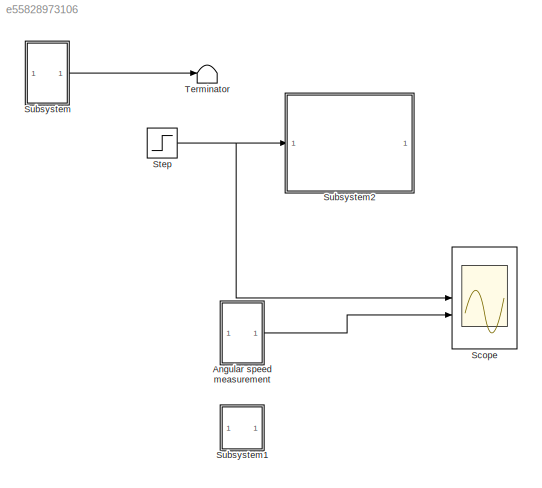
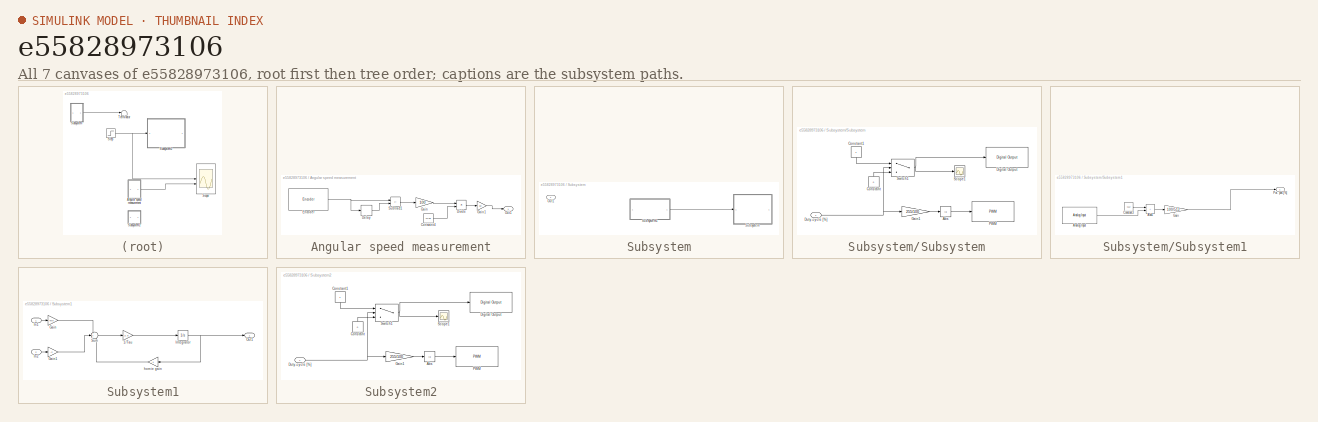
[diagram: thumbnail index - all 7 canvases of the model, root first then tree order]
MODEL slx_e55828973106
KIND model
CONFIG AbsTol = auto
CONFIG EnableMultiTasking = off
CONFIG FixedStep = auto
CONFIG MaxStep = auto
CONFIG MinStep = auto
CONFIG RelTol = 1e-3
CONFIG SampleTimeConstraint = Unconstrained
CONFIG SolverName = FixedStepAuto
CONFIG StartTime = 0.0
CONFIG StopTime = inf
BLOCK [SubSystem] Angular speed measurement
BLOCK [Constant] Angular speed measurement/Constant4
  Value = 47*48
BLOCK [Delay] Angular speed measurement/Delay
  DelayLength = 1
  InputPortMap = u0
  SampleTime = 0.01
BLOCK [Product] Angular speed measurement/Divide
  Inputs = */
BLOCK [Reference] Angular speed measurement/Encoder  REF=arduinosensorlib/Encoder
  SourceBlock = arduinosensorlib/Encoder
  SourceType = Arduino Rotary Encoder
BLOCK [Gain] Angular speed measurement/Gain
  Gain = 100
BLOCK [Gain] Angular speed measurement/Gain1
  Gain = 60
BLOCK [Outport] Angular speed measurement/Out1
BLOCK [Sum] Angular speed measurement/Subtract1
  IconShape = rectangular
  Inputs = +-
BLOCK [Scope] Scope
  Floating = off
  NumInputPorts = 2
  ScopeSpecificationString = Simulink.scopes.TimeScopeBlockCfg('CurrentConfiguration', extmgr.ConfigurationSet(extmgr.Configuration('Core','General UI',true),extmgr.Configuration('Core','Source UI',true),extmgr.Configuration('Sources','WiredSimulink',true,'DataLoggingVariableName','ScopeData1'),extmgr.Configuration('Visuals','Time Domain',true,'SerializedDisplays',{struct('MinYLimReal','-12.5','MaxYLimReal','112.5','YLabelRea...<+2142ch>
BLOCK [Step] Step
  After = 100
  SampleTime = 0
  Time = 5
BLOCK [SubSystem] Subsystem
  Commented = on
BLOCK [Outport] Subsystem/Out1
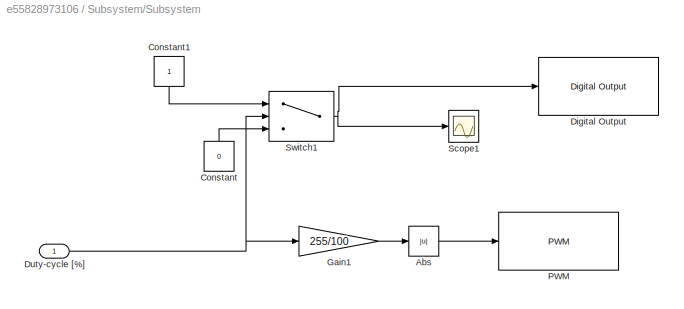
BLOCK [SubSystem] Subsystem/Subsystem
BLOCK [Abs] Subsystem/Subsystem/Abs
  SaturateOnIntegerOverflow = off
BLOCK [Constant] Subsystem/Subsystem/Constant
  NameLocation = right
  Value = 0
BLOCK [Constant] Subsystem/Subsystem/Constant1
  NameLocation = left
BLOCK [Reference] Subsystem/Subsystem/Digital Output  REF=arduinolib/Digital Output
  SourceBlock = arduinolib/Digital Output
  SourceType = Arduino Digital Output
BLOCK [Inport] Subsystem/Subsystem/Duty-cycle [%]
BLOCK [Gain] Subsystem/Subsystem/Gain1
  Gain = 255/100
BLOCK [Reference] Subsystem/Subsystem/PWM  REF=arduinolib/PWM
  SourceBlock = arduinolib/PWM
  SourceType = Arduino PWM
BLOCK [Scope] Subsystem/Subsystem/Scope1
  Floating = off
  NumInputPorts = 1
  ScopeSpecificationString = Simulink.scopes.TimeScopeBlockCfg('CurrentConfiguration', extmgr.ConfigurationSet(extmgr.Configuration('Core','General UI',true),extmgr.Configuration('Core','Source UI',true),extmgr.Configuration('Sources','WiredSimulink',true,'DataLoggingVariableName','ScopeData1'),extmgr.Configuration('Visuals','Time Domain',true,'SerializedDisplays',{struct('MinYLimReal','-0.125','MaxYLimReal','1.125','YLabelRe...<+1354ch>
BLOCK [Switch] Subsystem/Subsystem/Switch1
  Criteria = u2 > Threshold
  InputSameDT = off
  SaturateOnIntegerOverflow = off
BLOCK [SubSystem] Subsystem/Subsystem1
BLOCK [Outport] Subsystem/Subsystem1/ Pot. pos [%]
BLOCK [Sum] Subsystem/Subsystem1/Add1
  IconShape = rectangular
BLOCK [Reference] Subsystem/Subsystem1/Analog Input  REF=arduinolib/Analog Input
  SourceBlock = arduinolib/Analog Input
  SourceType = Arduino Analog Input
BLOCK [Constant] Subsystem/Subsystem1/Constant3
  Value = -512
BLOCK [Gain] Subsystem/Subsystem1/Gain
  Gain = 100/512
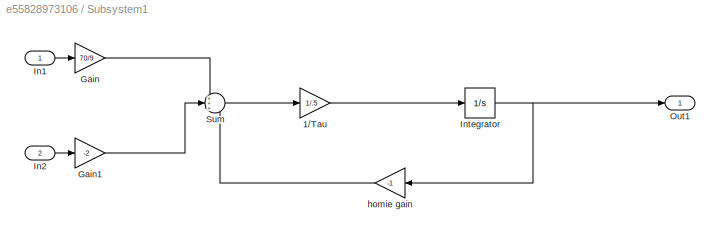
BLOCK [SubSystem] Subsystem1
BLOCK [Gain] Subsystem1/1//Tau
  Gain = 1/.5
BLOCK [Gain] Subsystem1/Gain
  Gain = 70/9
BLOCK [Gain] Subsystem1/Gain1
  Gain = -2
BLOCK [Inport] Subsystem1/In1
BLOCK [Inport] Subsystem1/In2
  Port = 2
BLOCK [Integrator] Subsystem1/Integrator
BLOCK [Outport] Subsystem1/Out1
BLOCK [Sum] Subsystem1/Sum
  Inputs = +++
BLOCK [Gain] Subsystem1/homie gain
  Gain = -1
  NameLocation = top
BLOCK [SubSystem] Subsystem2
BLOCK [Abs] Subsystem2/Abs
  SaturateOnIntegerOverflow = off
BLOCK [Constant] Subsystem2/Constant
  NameLocation = right
  Value = 0
BLOCK [Constant] Subsystem2/Constant1
  NameLocation = left
BLOCK [Reference] Subsystem2/Digital Output  REF=arduinolib/Digital Output
  SourceBlock = arduinolib/Digital Output
  SourceType = Arduino Digital Output
BLOCK [Inport] Subsystem2/Duty-cycle [%]
BLOCK [Gain] Subsystem2/Gain1
  Gain = 255/100
BLOCK [Reference] Subsystem2/PWM  REF=arduinolib/PWM
  SourceBlock = arduinolib/PWM
  SourceType = Arduino PWM
BLOCK [Scope] Subsystem2/Scope1
  Floating = off
  NumInputPorts = 1
  ScopeSpecificationString = Simulink.scopes.TimeScopeBlockCfg('CurrentConfiguration', extmgr.ConfigurationSet(extmgr.Configuration('Core','General UI',true),extmgr.Configuration('Core','Source UI',true),extmgr.Configuration('Sources','WiredSimulink',true,'DataLoggingVariableName','ScopeData1'),extmgr.Configuration('Visuals','Time Domain',true,'SerializedDisplays',{struct('MinYLimReal','-0.125','MaxYLimReal','1.125','YLabelRe...<+1354ch>
BLOCK [Switch] Subsystem2/Switch1
  Criteria = u2 > Threshold
  InputSameDT = off
  SaturateOnIntegerOverflow = off
BLOCK [Terminator] Terminator
  Commented = on
LINE Angular speed measurement/Constant4:1 -> Angular speed measurement/Divide:2
LINE Angular speed measurement/Delay:1 -> Angular speed measurement/Subtract1:2
LINE Angular speed measurement/Divide:1 -> Angular speed measurement/Gain1:1
NET Angular speed measurement/Encoder:1 -> Angular speed measurement/Delay:1, Angular speed measurement/Subtract1:1
LINE Angular speed measurement/Gain1:1 -> Angular speed measurement/Out1:1
LINE Angular speed measurement/Gain:1 -> Angular speed measurement/Divide:1
LINE Angular speed measurement/Subtract1:1 -> Angular speed measurement/Gain:1
LINE Angular speed measurement:1 -> Scope:2
NET Step:1 -> Scope:1, Subsystem2:1
LINE Subsystem/Subsystem/Abs:1 -> Subsystem/Subsystem/PWM:1
LINE Subsystem/Subsystem/Constant1:1 -> Subsystem/Subsystem/Switch1:1
LINE Subsystem/Subsystem/Constant:1 -> Subsystem/Subsystem/Switch1:3
NET Subsystem/Subsystem/Duty-cycle [%]:1 -> Subsystem/Subsystem/Gain1:1, Subsystem/Subsystem/Switch1:2
LINE Subsystem/Subsystem/Gain1:1 -> Subsystem/Subsystem/Abs:1
NET Subsystem/Subsystem/Switch1:1 -> Subsystem/Subsystem/Digital Output:1, Subsystem/Subsystem/Scope1:1
LINE Subsystem/Subsystem1/Add1:1 -> Subsystem/Subsystem1/Gain:1
LINE Subsystem/Subsystem1/Analog Input:1 -> Subsystem/Subsystem1/Add1:2
LINE Subsystem/Subsystem1/Constant3:1 -> Subsystem/Subsystem1/Add1:1
LINE Subsystem/Subsystem1/Gain:1 -> Subsystem/Subsystem1/ Pot. pos [%]:1
LINE Subsystem/Subsystem1:1 -> Subsystem/Subsystem:1
LINE Subsystem1/1//Tau:1 -> Subsystem1/Integrator:1
LINE Subsystem1/Gain1:1 -> Subsystem1/Sum:2
LINE Subsystem1/Gain:1 -> Subsystem1/Sum:1
LINE Subsystem1/In1:1 -> Subsystem1/Gain:1
LINE Subsystem1/In2:1 -> Subsystem1/Gain1:1
NET Subsystem1/Integrator:1 -> Subsystem1/Out1:1, Subsystem1/homie gain:1
LINE Subsystem1/Sum:1 -> Subsystem1/1//Tau:1
LINE Subsystem1/homie gain:1 -> Subsystem1/Sum:3
LINE Subsystem2/Abs:1 -> Subsystem2/PWM:1
LINE Subsystem2/Constant1:1 -> Subsystem2/Switch1:1
LINE Subsystem2/Constant:1 -> Subsystem2/Switch1:3
NET Subsystem2/Duty-cycle [%]:1 -> Subsystem2/Gain1:1, Subsystem2/Switch1:2
LINE Subsystem2/Gain1:1 -> Subsystem2/Abs:1
NET Subsystem2/Switch1:1 -> Subsystem2/Digital Output:1, Subsystem2/Scope1:1
LINE Subsystem:1 -> Terminator:1
note: NET lines group one-source signal fan-out (src -> all destinations, sorted); 1:1 wires keep LINE
